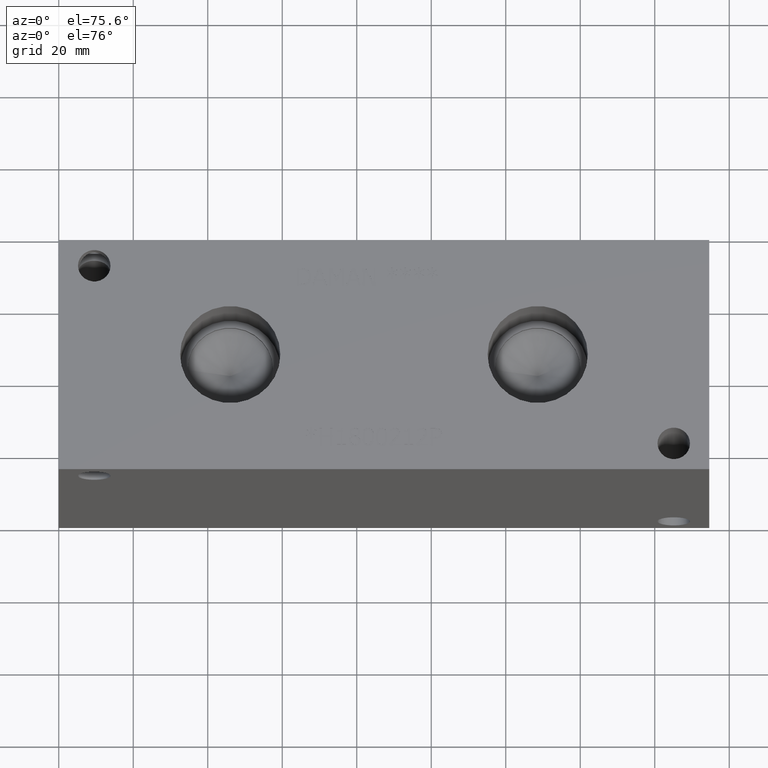
[diagram: clean part render]
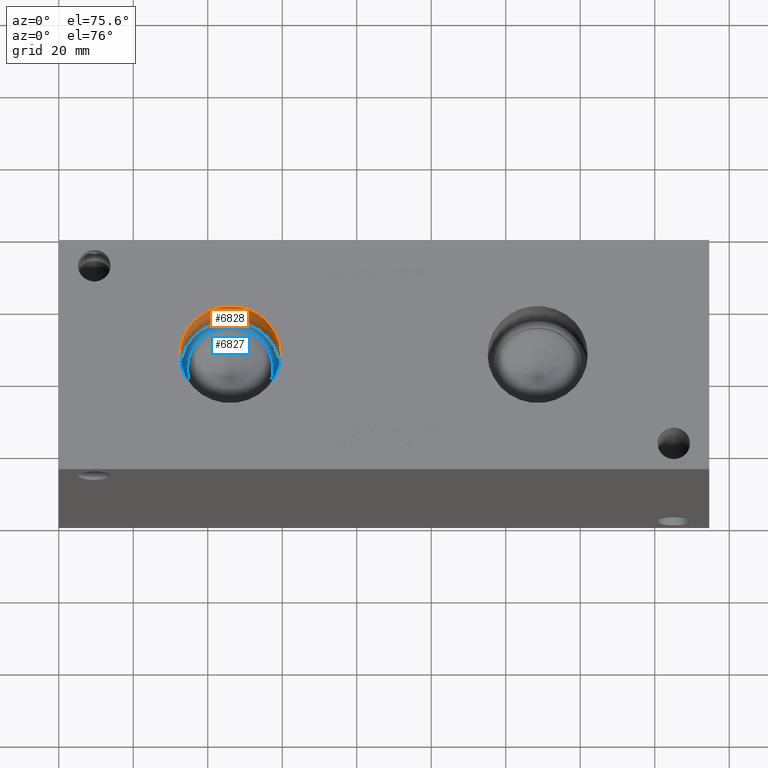
[diagram: same view with the hole feature highlighted: cylindrical wall and planar end face, labeled with their STEP entity ids]
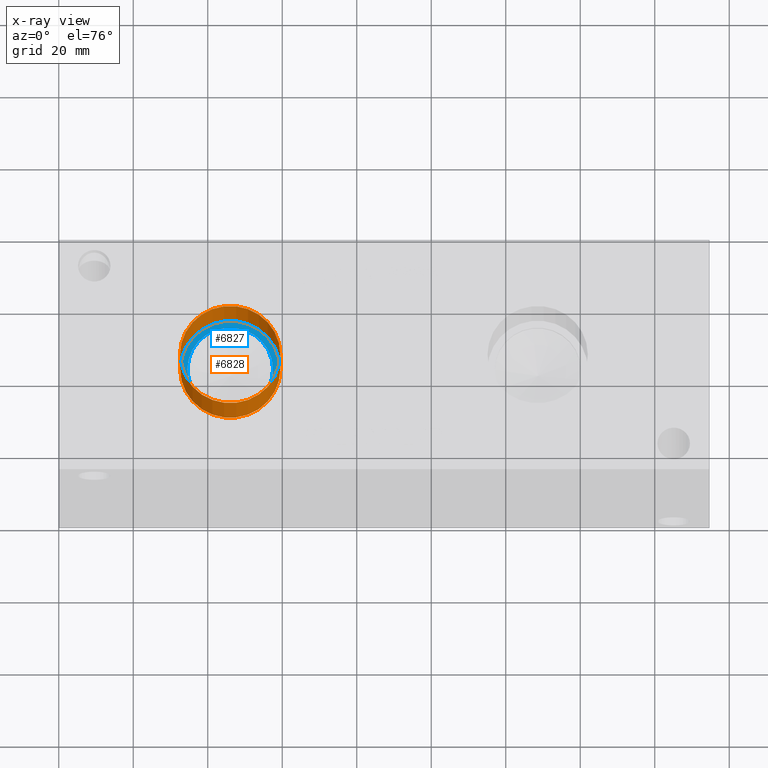
[diagram: x-ray of the same camera — body ghosted, the hole faces saturated]
A machine part, auxiliary view. The highlighted faces form one hole feature of diameter 26.924 mm: the cylindrical wall (entity #6828, orange) and its adjacent planar end face (entity #6827, blue) — they share a circular edge in the B-rep.
The next image is the same camera in x-ray (body ghosted, the hole faces saturated) — the bore reads through the body.
Wall:
#34=CYLINDRICAL_SURFACE('',#7145,13.462);
#52=CIRCLE('',#6949,13.462);
#53=CIRCLE('',#6950,13.462);
#80=CIRCLE('',#7142,13.462);
#81=CIRCLE('',#7143,13.462);
#706=FACE_OUTER_BOUND('',#1083,.T.);
#1083=EDGE_LOOP('',(#6020,#6021,#6022,#6023,#6024,#6025));
#1803=LINE('',#11438,#2509);
#2509=VECTOR('',#8441,13.462);
#3114=VERTEX_POINT('',#10669);
#3115=VERTEX_POINT('',#10670);
#3293=VERTEX_POINT('',#11431);
#3294=VERTEX_POINT('',#11432);
#3889=EDGE_CURVE('',#3114,#3115,#52,.T.);
#3890=EDGE_CURVE('',#3115,#3114,#53,.T.);
#4215=EDGE_CURVE('',#3293,#3294,#80,.T.);
#4216=EDGE_CURVE('',#3294,#3293,#81,.T.);
#4218=EDGE_CURVE('',#3115,#3294,#1803,.T.);
#6020=ORIENTED_EDGE('',*,*,#3889,.F.);
#6021=ORIENTED_EDGE('',*,*,#3890,.F.);
#6022=ORIENTED_EDGE('',*,*,#4218,.T.);
#6023=ORIENTED_EDGE('',*,*,#4215,.F.);
#6024=ORIENTED_EDGE('',*,*,#4216,.F.);
#6025=ORIENTED_EDGE('',*,*,#4218,.F.);
#6828=ADVANCED_FACE('',(#706),#34,.F.);
#6949=AXIS2_PLACEMENT_3D('',#10671,#7769,#7770);
#6950=AXIS2_PLACEMENT_3D('',#10672,#7771,#7772);
#7142=AXIS2_PLACEMENT_3D('',#11433,#8433,#8434);
#7143=AXIS2_PLACEMENT_3D('',#11434,#8435,#8436);
#7145=AXIS2_PLACEMENT_3D('',#11437,#8439,#8440);
#7769=DIRECTION('center_axis',(0.,0.,-1.));
#7770=DIRECTION('ref_axis',(1.,0.,0.));
#7771=DIRECTION('center_axis',(0.,0.,-1.));
#7772=DIRECTION('ref_axis',(1.,0.,0.));
#8433=DIRECTION('center_axis',(0.,0.,1.));
#8434=DIRECTION('ref_axis',(1.,0.,0.));
#8435=DIRECTION('center_axis',(0.,0.,1.));
#8436=DIRECTION('ref_axis',(1.,0.,0.));
#8439=DIRECTION('center_axis',(0.,0.,1.));
#8440=DIRECTION('ref_axis',(1.,0.,0.));
#8441=DIRECTION('',(0.,0.,-1.));
#10669=CARTESIAN_POINT('',(59.4868,31.75,63.5));
#10670=CARTESIAN_POINT('',(32.5628,31.75,63.5));
#10671=CARTESIAN_POINT('Origin',(46.0248,31.75,63.5));
#10672=CARTESIAN_POINT('Origin',(46.0248,31.75,63.5));
#11431=CARTESIAN_POINT('',(59.4868,31.75,47.6504));
#11432=CARTESIAN_POINT('',(32.5628,31.75,47.6504));
#11433=CARTESIAN_POINT('Origin',(46.0248,31.75,47.6504));
#11434=CARTESIAN_POINT('Origin',(46.0248,31.75,47.6504));
#11437=CARTESIAN_POINT('Origin',(46.0248,31.75,55.5752));
#11438=CARTESIAN_POINT('',(32.5628,31.75,55.5752));
End face:
#80=CIRCLE('',#7142,13.462);
#81=CIRCLE('',#7143,13.462);
#82=CIRCLE('',#7144,11.5062);
#135=FACE_BOUND('',#1082,.T.);
#373=PLANE('',#7141);
#705=FACE_OUTER_BOUND('',#1081,.T.);
#1081=EDGE_LOOP('',(#6017,#6018));
#1082=EDGE_LOOP('',(#6019));
#3293=VERTEX_POINT('',#11431);
#3294=VERTEX_POINT('',#11432);
#3295=VERTEX_POINT('',#11435);
#4215=EDGE_CURVE('',#3293,#3294,#80,.T.);
#4216=EDGE_CURVE('',#3294,#3293,#81,.T.);
#4217=EDGE_CURVE('',#3295,#3295,#82,.T.);
#6017=ORIENTED_EDGE('',*,*,#4215,.T.);
#6018=ORIENTED_EDGE('',*,*,#4216,.T.);
#6019=ORIENTED_EDGE('',*,*,#4217,.F.);
#6827=ADVANCED_FACE('',(#705,#135),#373,.T.);
#7141=AXIS2_PLACEMENT_3D('',#11430,#8431,#8432);
#7142=AXIS2_PLACEMENT_3D('',#11433,#8433,#8434);
#7143=AXIS2_PLACEMENT_3D('',#11434,#8435,#8436);
#7144=AXIS2_PLACEMENT_3D('',#11436,#8437,#8438);
#8431=DIRECTION('center_axis',(0.,0.,1.));
#8432=DIRECTION('ref_axis',(1.,0.,0.));
#8433=DIRECTION('center_axis',(0.,0.,1.));
#8434=DIRECTION('ref_axis',(1.,0.,0.));
#8435=DIRECTION('center_axis',(0.,0.,1.));
#8436=DIRECTION('ref_axis',(1.,0.,0.));
#8437=DIRECTION('center_axis',(0.,0.,1.));
#8438=DIRECTION('ref_axis',(1.,0.,0.));
#11430=CARTESIAN_POINT('Origin',(46.0248,31.75,47.6504));
#11431=CARTESIAN_POINT('',(59.4868,31.75,47.6504));
#11432=CARTESIAN_POINT('',(32.5628,31.75,47.6504));
#11433=CARTESIAN_POINT('Origin',(46.0248,31.75,47.6504));
#11434=CARTESIAN_POINT('Origin',(46.0248,31.75,47.6504));
#11435=CARTESIAN_POINT('',(34.5186,31.75,47.6504));
#11436=CARTESIAN_POINT('Origin',(46.0248,31.75,47.6504));